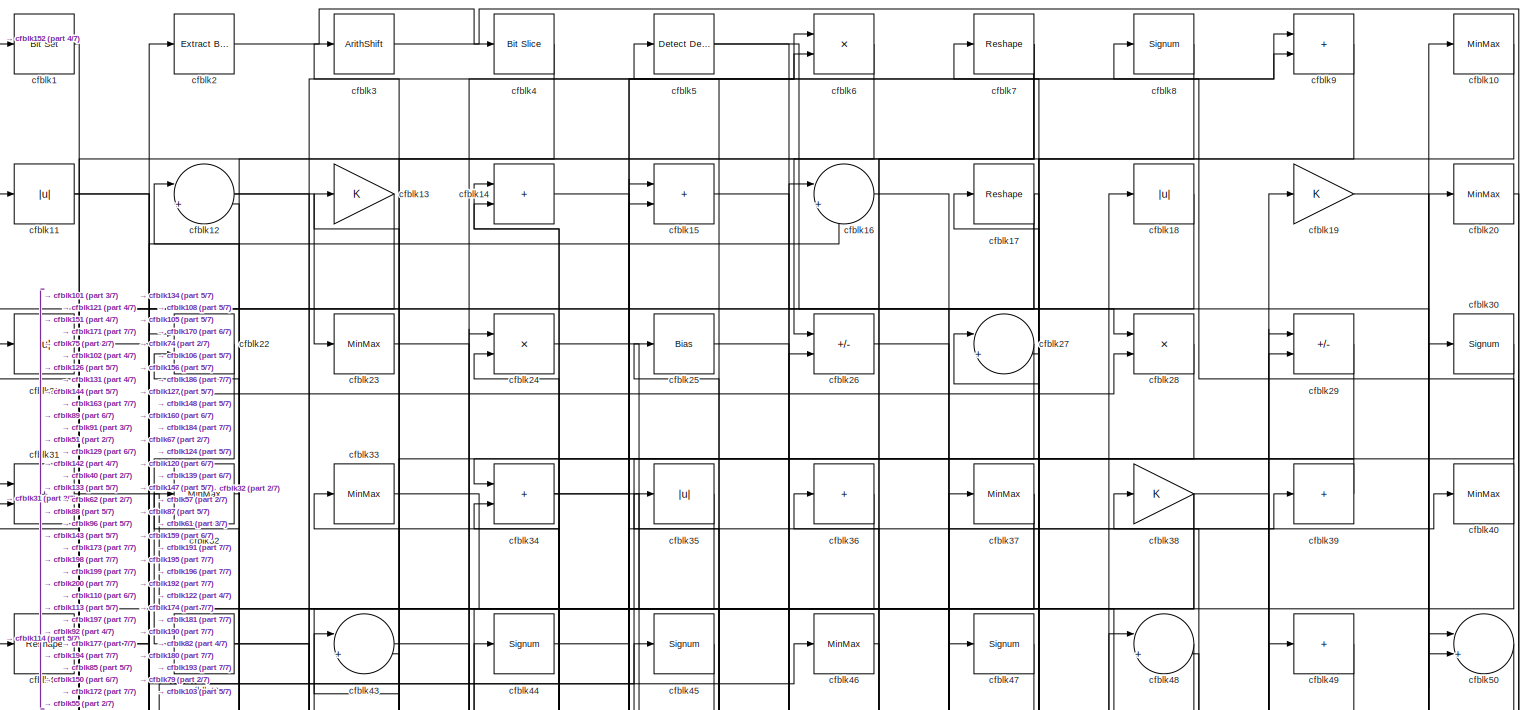
[diagram: root canvas - part 1/7, full width, top band]
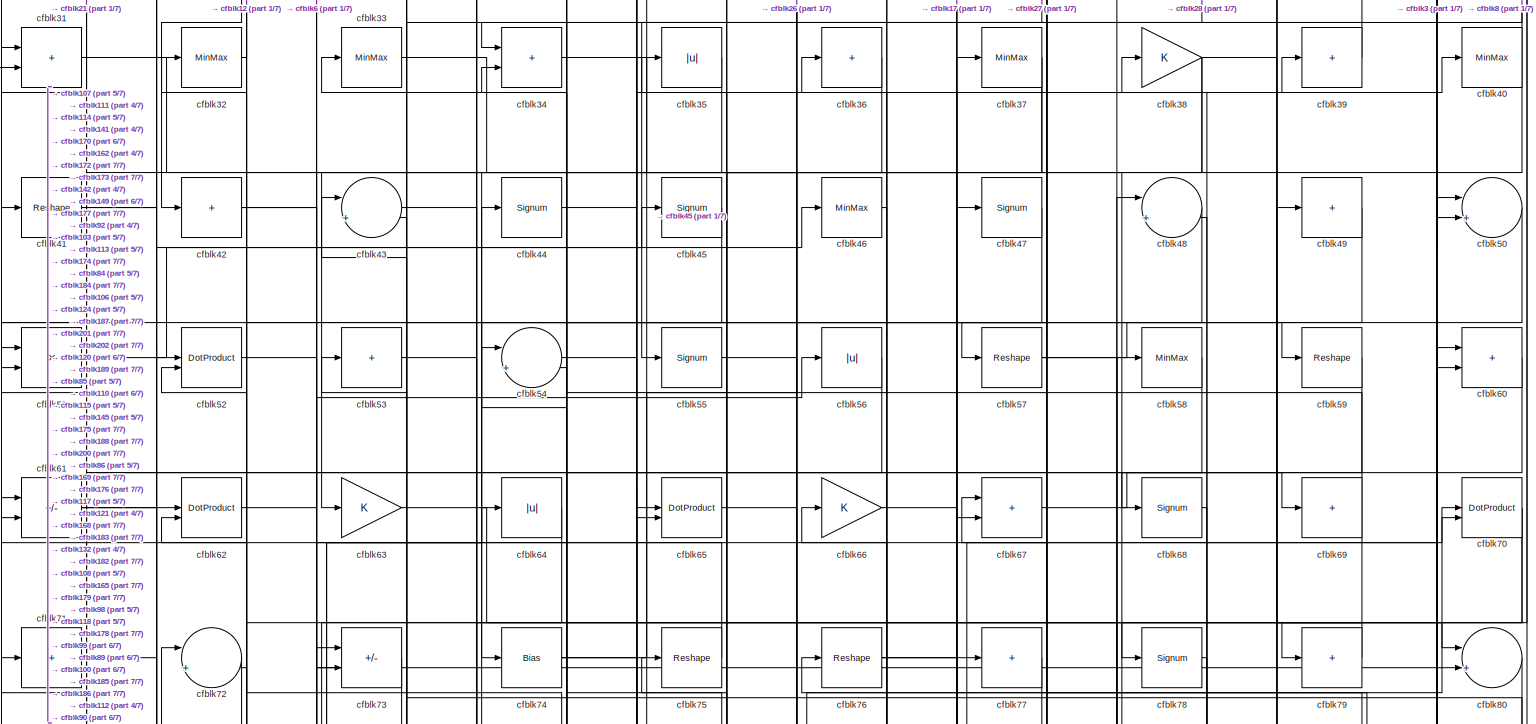
[diagram: root canvas - part 2/7, full width, top band]
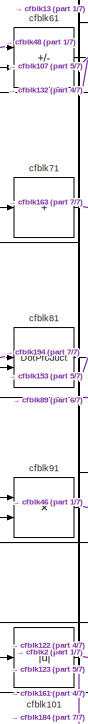
[diagram: root canvas - part 3/7, middle left region]
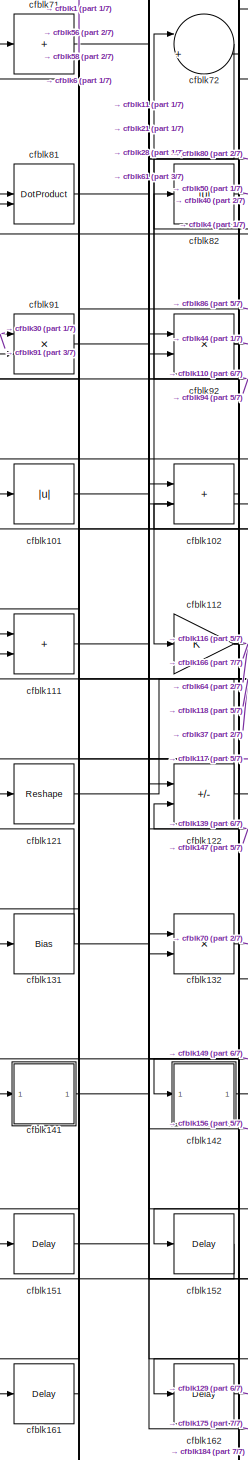
[diagram: root canvas - part 4/7, middle left region]
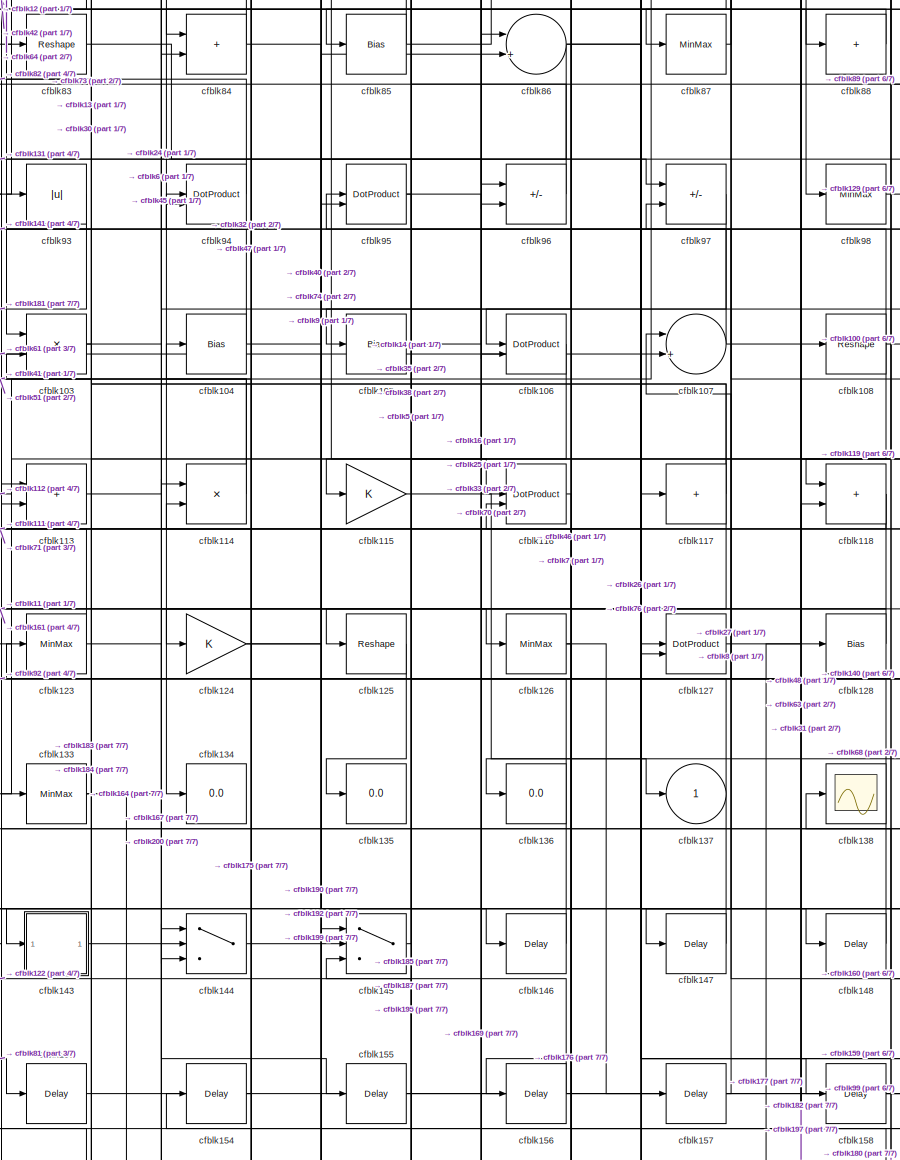
[diagram: root canvas - part 5/7, central region]
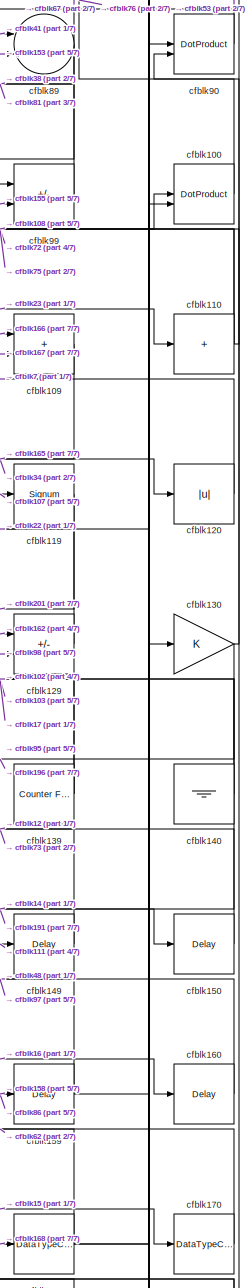
[diagram: root canvas - part 6/7, middle right region]
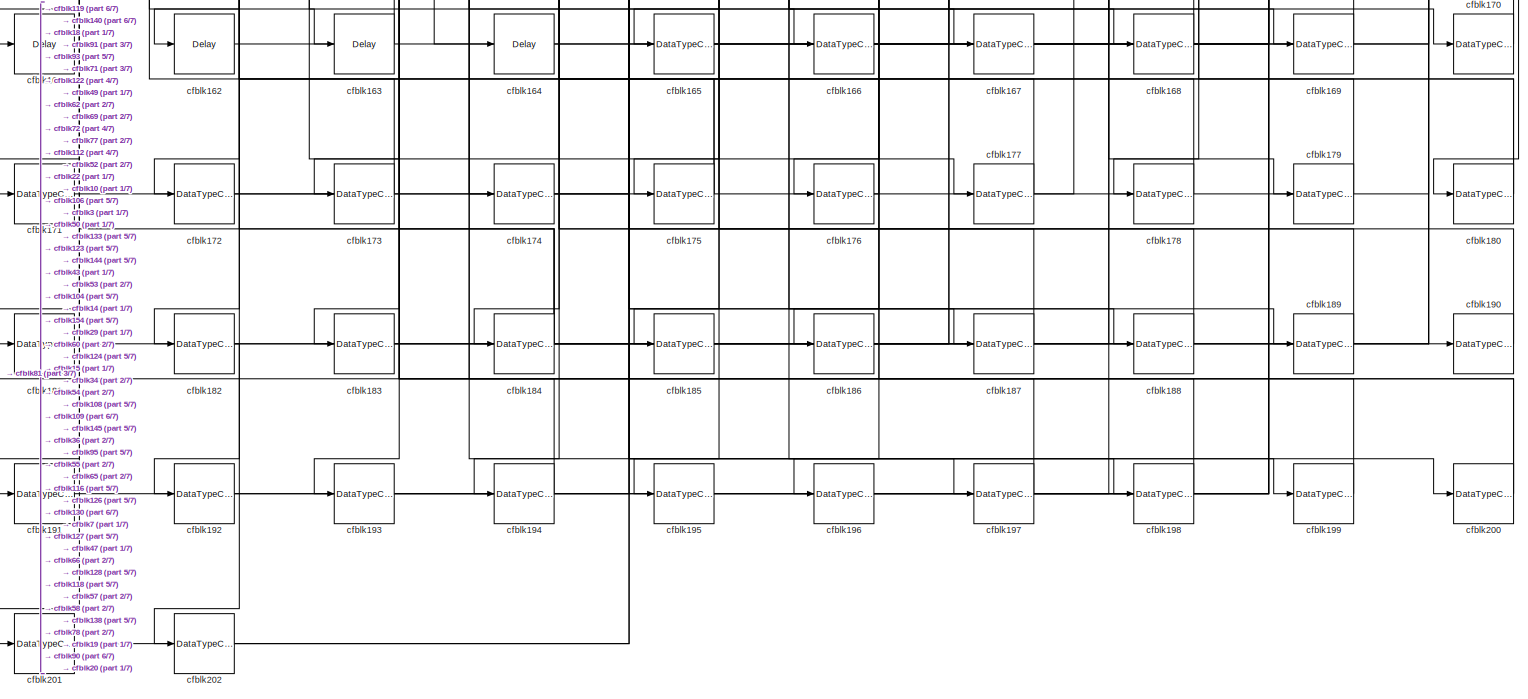
[diagram: root canvas - part 7/7, full width, bottom band]
MODEL slx_866f47cd0418
KIND model
CONFIG AbsTol = auto
CONFIG EnableMultiTasking = off
CONFIG FixedStep = auto
CONFIG MaxStep = auto
CONFIG MinStep = auto
CONFIG RelTol = 1e-3
CONFIG SampleTimeConstraint = Unconstrained
CONFIG SolverName = VariableStepAuto
CONFIG StartTime = 0.0
CONFIG StopTime = 10.0
BLOCK [Reference] cfblk1  REF=simulink/Logic and Bit
Operations/Bit Set
  LibrarySourceBlock = hdlsllib/Logic and Bit\nOperations/Bit Set
  SourceBlock = simulink/Logic and Bit\nOperations/Bit Set
  SourceType = Bit Set
BLOCK [MinMax] cfblk10
BLOCK [DotProduct] cfblk100
  OutDataTypeStr = Inherit: Inherit via internal rule
BLOCK [Abs] cfblk101
  SaturateOnIntegerOverflow = off
BLOCK [Sum] cfblk102
  IconShape = rectangular
BLOCK [Product] cfblk103
  Inputs = */
  RndMeth = Zero
  SaturateOnIntegerOverflow = on
BLOCK [Bias] cfblk104
  Bias = 0.0
  SaturateOnIntegerOverflow = off
BLOCK [Bias] cfblk105
  Bias = 0.0
  SaturateOnIntegerOverflow = off
BLOCK [DotProduct] cfblk106
  OutDataTypeStr = Inherit: Inherit via internal rule
BLOCK [Sum] cfblk107
  Inputs = |++
BLOCK [Reshape] cfblk108
BLOCK [Sum] cfblk109
  IconShape = rectangular
BLOCK [Abs] cfblk11
  SaturateOnIntegerOverflow = off
BLOCK [Sum] cfblk110
  IconShape = rectangular
  Inputs = +
BLOCK [Sum] cfblk111
  IconShape = rectangular
BLOCK [Gain] cfblk112
BLOCK [Sum] cfblk113
  IconShape = rectangular
BLOCK [Product] cfblk114
  Inputs = */
  RndMeth = Zero
  SaturateOnIntegerOverflow = on
BLOCK [Gain] cfblk115
BLOCK [DotProduct] cfblk116
  OutDataTypeStr = Inherit: Inherit via internal rule
BLOCK [Sum] cfblk117
  IconShape = rectangular
  Inputs = +
BLOCK [Sum] cfblk118
  IconShape = rectangular
BLOCK [Signum] cfblk119
BLOCK [Sum] cfblk12
  Inputs = |++
BLOCK [Abs] cfblk120
  SaturateOnIntegerOverflow = off
BLOCK [Reshape] cfblk121
BLOCK [Sum] cfblk122
  IconShape = rectangular
  Inputs = +-
BLOCK [MinMax] cfblk123
BLOCK [Gain] cfblk124
BLOCK [Reshape] cfblk125
BLOCK [MinMax] cfblk126
BLOCK [DotProduct] cfblk127
  OutDataTypeStr = Inherit: Inherit via internal rule
BLOCK [Bias] cfblk128
  Bias = 0.0
  SaturateOnIntegerOverflow = off
BLOCK [Sum] cfblk129
  IconShape = rectangular
  Inputs = +-
BLOCK [Gain] cfblk13
BLOCK [Gain] cfblk130
BLOCK [Bias] cfblk131
  Bias = 0.0
  SaturateOnIntegerOverflow = off
BLOCK [Product] cfblk132
  Inputs = */
  RndMeth = Zero
  SaturateOnIntegerOverflow = on
BLOCK [MinMax] cfblk133
BLOCK [Display] cfblk134
  Decimation = 1
BLOCK [Display] cfblk135
  Decimation = 1
BLOCK [Display] cfblk136
  Decimation = 1
BLOCK [Outport] cfblk137
  VectorParamsAs1DForOutWhenUnconnected = off
BLOCK [Scope] cfblk138
  Floating = off
  NumInputPorts = 1
  ScopeSpecificationString = Simulink.scopes.TimeScopeBlockCfg('CurrentConfiguration', extmgr.ConfigurationSet(extmgr.Configuration('Core','General UI',true),extmgr.Configuration('Core','Source UI',true),extmgr.Configuration('Sources','WiredSimulink',true,'DataLoggingVariableName','ScopeData2','DataLoggingSaveFormat','Array','DataLoggingLimitDataPoints',true,'DataLoggingDecimation','1'),extmgr.Configuration('Visuals','Time Do...<+868ch>
BLOCK [Reference] cfblk139  REF=hdlsllib/Sources/Counter
Free-Running
  SourceBlock = hdlsllib/Sources/Counter\nFree-Running
  SourceType = Counter Free-Running
BLOCK [Sum] cfblk14
  IconShape = rectangular
BLOCK [Ground] cfblk140
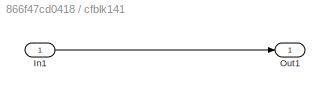
BLOCK [SubSystem] cfblk141
  LibrarySourceBlock = hdlsllib/Ports &\nSubsystems/Subsystem
BLOCK [Inport] cfblk141/In1
BLOCK [Outport] cfblk141/Out1
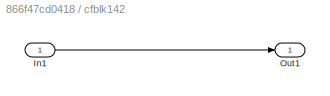
BLOCK [SubSystem] cfblk142
  LibrarySourceBlock = hdlsllib/Ports &\nSubsystems/Subsystem
BLOCK [Inport] cfblk142/In1
BLOCK [Outport] cfblk142/Out1
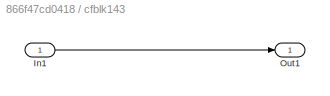
BLOCK [SubSystem] cfblk143
  LibrarySourceBlock = hdlsllib/Ports &\nSubsystems/Subsystem
BLOCK [Inport] cfblk143/In1
BLOCK [Outport] cfblk143/Out1
BLOCK [Switch] cfblk144
  InputSameDT = off
  SaturateOnIntegerOverflow = off
BLOCK [Switch] cfblk145
  InputSameDT = off
  SaturateOnIntegerOverflow = off
BLOCK [Delay] cfblk146
  InputPortMap = u0
  SampleTime = 1
BLOCK [Delay] cfblk147
  InputPortMap = u0
  SampleTime = 1
BLOCK [Delay] cfblk148
  InputPortMap = u0
  SampleTime = 1
BLOCK [Delay] cfblk149
  InputPortMap = u0
  SampleTime = 1
BLOCK [Sum] cfblk15
  IconShape = rectangular
BLOCK [Delay] cfblk150
  InputPortMap = u0
  SampleTime = 1
BLOCK [Delay] cfblk151
  InputPortMap = u0
  SampleTime = 1
BLOCK [Delay] cfblk152
  InputPortMap = u0
  SampleTime = 1
BLOCK [Delay] cfblk153
  InputPortMap = u0
  SampleTime = 1
BLOCK [Delay] cfblk154
  InputPortMap = u0
  SampleTime = 1
BLOCK [Delay] cfblk155
  InputPortMap = u0
  SampleTime = 1
BLOCK [Delay] cfblk156
  InputPortMap = u0
  SampleTime = 1
BLOCK [Delay] cfblk157
  InputPortMap = u0
  SampleTime = 1
BLOCK [Delay] cfblk158
  InputPortMap = u0
  SampleTime = 1
BLOCK [Delay] cfblk159
  InputPortMap = u0
  SampleTime = 1
BLOCK [Sum] cfblk16
  Inputs = |++
BLOCK [Delay] cfblk160
  InputPortMap = u0
  SampleTime = 1
BLOCK [Delay] cfblk161
  InputPortMap = u0
  SampleTime = 1
BLOCK [Delay] cfblk162
  InputPortMap = u0
  SampleTime = 1
BLOCK [Delay] cfblk163
  InputPortMap = u0
  SampleTime = 1
BLOCK [Delay] cfblk164
  InputPortMap = u0
  SampleTime = 1
BLOCK [DataTypeConversion] cfblk165
  RndMeth = Floor
  SaturateOnIntegerOverflow = off
BLOCK [DataTypeConversion] cfblk166
  OutDataTypeStr = uint8
  RndMeth = Floor
  SaturateOnIntegerOverflow = off
BLOCK [DataTypeConversion] cfblk167
  OutDataTypeStr = uint8
  RndMeth = Floor
  SaturateOnIntegerOverflow = off
BLOCK [DataTypeConversion] cfblk168
  RndMeth = Floor
  SaturateOnIntegerOverflow = off
BLOCK [DataTypeConversion] cfblk169
  OutDataTypeStr = uint8
  RndMeth = Floor
  SaturateOnIntegerOverflow = off
BLOCK [Reshape] cfblk17
BLOCK [DataTypeConversion] cfblk170
  OutDataTypeStr = uint8
  RndMeth = Floor
  SaturateOnIntegerOverflow = off
BLOCK [DataTypeConversion] cfblk171
  OutDataTypeStr = uint8
  RndMeth = Floor
  SaturateOnIntegerOverflow = off
BLOCK [DataTypeConversion] cfblk172
  OutDataTypeStr = uint8
  RndMeth = Floor
  SaturateOnIntegerOverflow = off
BLOCK [DataTypeConversion] cfblk173
  OutDataTypeStr = uint8
  RndMeth = Floor
  SaturateOnIntegerOverflow = off
BLOCK [DataTypeConversion] cfblk174
  OutDataTypeStr = uint8
  RndMeth = Floor
  SaturateOnIntegerOverflow = off
BLOCK [DataTypeConversion] cfblk175
  RndMeth = Floor
  SaturateOnIntegerOverflow = off
BLOCK [DataTypeConversion] cfblk176
  OutDataTypeStr = uint8
  RndMeth = Floor
  SaturateOnIntegerOverflow = off
BLOCK [DataTypeConversion] cfblk177
  RndMeth = Floor
  SaturateOnIntegerOverflow = off
BLOCK [DataTypeConversion] cfblk178
  OutDataTypeStr = uint8
  RndMeth = Floor
  SaturateOnIntegerOverflow = off
BLOCK [DataTypeConversion] cfblk179
  OutDataTypeStr = uint8
  RndMeth = Floor
  SaturateOnIntegerOverflow = off
BLOCK [Abs] cfblk18
  SaturateOnIntegerOverflow = off
BLOCK [DataTypeConversion] cfblk180
  RndMeth = Floor
  SaturateOnIntegerOverflow = off
BLOCK [DataTypeConversion] cfblk181
  OutDataTypeStr = uint8
  RndMeth = Floor
  SaturateOnIntegerOverflow = off
BLOCK [DataTypeConversion] cfblk182
  RndMeth = Floor
  SaturateOnIntegerOverflow = off
BLOCK [DataTypeConversion] cfblk183
  OutDataTypeStr = uint8
  RndMeth = Floor
  SaturateOnIntegerOverflow = off
BLOCK [DataTypeConversion] cfblk184
  RndMeth = Floor
  SaturateOnIntegerOverflow = off
BLOCK [DataTypeConversion] cfblk185
  OutDataTypeStr = uint8
  RndMeth = Floor
  SaturateOnIntegerOverflow = off
BLOCK [DataTypeConversion] cfblk186
  OutDataTypeStr = uint8
  RndMeth = Floor
  SaturateOnIntegerOverflow = off
BLOCK [DataTypeConversion] cfblk187
  OutDataTypeStr = uint8
  RndMeth = Floor
  SaturateOnIntegerOverflow = off
BLOCK [DataTypeConversion] cfblk188
  OutDataTypeStr = uint8
  RndMeth = Floor
  SaturateOnIntegerOverflow = off
BLOCK [DataTypeConversion] cfblk189
  OutDataTypeStr = uint8
  RndMeth = Floor
  SaturateOnIntegerOverflow = off
BLOCK [Gain] cfblk19
BLOCK [DataTypeConversion] cfblk190
  OutDataTypeStr = uint8
  RndMeth = Floor
  SaturateOnIntegerOverflow = off
BLOCK [DataTypeConversion] cfblk191
  OutDataTypeStr = uint8
  RndMeth = Floor
  SaturateOnIntegerOverflow = off
BLOCK [DataTypeConversion] cfblk192
  OutDataTypeStr = uint8
  RndMeth = Floor
  SaturateOnIntegerOverflow = off
BLOCK [DataTypeConversion] cfblk193
  OutDataTypeStr = uint8
  RndMeth = Floor
  SaturateOnIntegerOverflow = off
BLOCK [DataTypeConversion] cfblk194
  OutDataTypeStr = uint8
  RndMeth = Floor
  SaturateOnIntegerOverflow = off
BLOCK [DataTypeConversion] cfblk195
  OutDataTypeStr = uint8
  RndMeth = Floor
  SaturateOnIntegerOverflow = off
BLOCK [DataTypeConversion] cfblk196
  OutDataTypeStr = uint8
  RndMeth = Floor
  SaturateOnIntegerOverflow = off
BLOCK [DataTypeConversion] cfblk197
  RndMeth = Floor
  SaturateOnIntegerOverflow = off
BLOCK [DataTypeConversion] cfblk198
  OutDataTypeStr = uint8
  RndMeth = Floor
  SaturateOnIntegerOverflow = off
BLOCK [DataTypeConversion] cfblk199
  OutDataTypeStr = uint8
  RndMeth = Floor
  SaturateOnIntegerOverflow = off
BLOCK [Reference] cfblk2  REF=simulink/Logic and Bit
Operations/Extract Bits
  LibrarySourceBlock = hdlsllib/Logic and Bit\nOperations/Extract Bits
  SourceBlock = simulink/Logic and Bit\nOperations/Extract Bits
  SourceType = Extract Bits
BLOCK [MinMax] cfblk20
BLOCK [DataTypeConversion] cfblk200
  RndMeth = Floor
  SaturateOnIntegerOverflow = off
BLOCK [DataTypeConversion] cfblk201
  OutDataTypeStr = uint8
  RndMeth = Floor
  SaturateOnIntegerOverflow = off
BLOCK [DataTypeConversion] cfblk202
  OutDataTypeStr = uint8
  RndMeth = Floor
  SaturateOnIntegerOverflow = off
BLOCK [Abs] cfblk21
  SaturateOnIntegerOverflow = off
BLOCK [Product] cfblk22
  Inputs = */
  RndMeth = Zero
  SaturateOnIntegerOverflow = on
BLOCK [MinMax] cfblk23
BLOCK [Product] cfblk24
  Inputs = */
  RndMeth = Zero
  SaturateOnIntegerOverflow = on
BLOCK [Bias] cfblk25
  Bias = 0.0
  SaturateOnIntegerOverflow = off
BLOCK [Sum] cfblk26
  IconShape = rectangular
  Inputs = +-
BLOCK [Sum] cfblk27
  Inputs = |++
BLOCK [Product] cfblk28
  Inputs = */
  RndMeth = Zero
  SaturateOnIntegerOverflow = on
BLOCK [Sum] cfblk29
  IconShape = rectangular
  Inputs = +-
BLOCK [ArithShift] cfblk3
  BitShiftNumber = 8
  InputPortMap = u0
BLOCK [Signum] cfblk30
BLOCK [Sum] cfblk31
  IconShape = rectangular
BLOCK [MinMax] cfblk32
BLOCK [MinMax] cfblk33
BLOCK [Sum] cfblk34
  IconShape = rectangular
BLOCK [Abs] cfblk35
  SaturateOnIntegerOverflow = off
BLOCK [Sum] cfblk36
  IconShape = rectangular
  Inputs = +
BLOCK [MinMax] cfblk37
BLOCK [Gain] cfblk38
BLOCK [Sum] cfblk39
  IconShape = rectangular
  Inputs = +
BLOCK [Reference] cfblk4  REF=hdlsllib/Logic and Bit
Operations/Bit Slice
  SourceBlock = hdlsllib/Logic and Bit\nOperations/Bit Slice
  SourceType = Bit Slice
BLOCK [MinMax] cfblk40
BLOCK [Reshape] cfblk41
BLOCK [Sum] cfblk42
  IconShape = rectangular
  Inputs = +
BLOCK [Sum] cfblk43
  Inputs = |++
BLOCK [Signum] cfblk44
BLOCK [Signum] cfblk45
BLOCK [MinMax] cfblk46
BLOCK [Signum] cfblk47
BLOCK [Sum] cfblk48
  Inputs = |++
BLOCK [Sum] cfblk49
  IconShape = rectangular
  Inputs = +
BLOCK [Reference] cfblk5  REF=simulink/Logic and Bit
Operations/Detect
Decrease
  LibrarySourceBlock = hdlsllib/Logic and Bit\nOperations/Detect\nDecrease
  SourceBlock = simulink/Logic and Bit\nOperations/Detect\nDecrease
  SourceType = Detect Decrease
BLOCK [Sum] cfblk50
  Inputs = |++
BLOCK [Product] cfblk51
  Inputs = */
  RndMeth = Zero
  SaturateOnIntegerOverflow = on
BLOCK [DotProduct] cfblk52
  OutDataTypeStr = Inherit: Inherit via internal rule
BLOCK [Sum] cfblk53
  IconShape = rectangular
  Inputs = +
BLOCK [Sum] cfblk54
  Inputs = |++
BLOCK [Signum] cfblk55
BLOCK [Abs] cfblk56
  SaturateOnIntegerOverflow = off
BLOCK [Reshape] cfblk57
BLOCK [MinMax] cfblk58
BLOCK [Reshape] cfblk59
BLOCK [Product] cfblk6
  Inputs = */
  RndMeth = Zero
  SaturateOnIntegerOverflow = on
BLOCK [Sum] cfblk60
  IconShape = rectangular
BLOCK [Sum] cfblk61
  IconShape = rectangular
  Inputs = +-
BLOCK [DotProduct] cfblk62
  OutDataTypeStr = Inherit: Inherit via internal rule
BLOCK [Gain] cfblk63
BLOCK [Abs] cfblk64
  SaturateOnIntegerOverflow = off
BLOCK [DotProduct] cfblk65
  OutDataTypeStr = Inherit: Inherit via internal rule
BLOCK [Gain] cfblk66
BLOCK [Sum] cfblk67
  IconShape = rectangular
BLOCK [Signum] cfblk68
BLOCK [Sum] cfblk69
  IconShape = rectangular
  Inputs = +
BLOCK [Reshape] cfblk7
BLOCK [DotProduct] cfblk70
  OutDataTypeStr = Inherit: Inherit via internal rule
BLOCK [Sum] cfblk71
  IconShape = rectangular
  Inputs = +
BLOCK [Sum] cfblk72
  Inputs = |++
BLOCK [Sum] cfblk73
  IconShape = rectangular
  Inputs = +-
BLOCK [Bias] cfblk74
  Bias = 0.0
  SaturateOnIntegerOverflow = off
BLOCK [Reshape] cfblk75
BLOCK [Reshape] cfblk76
BLOCK [Sum] cfblk77
  IconShape = rectangular
  Inputs = +
BLOCK [Signum] cfblk78
BLOCK [Sum] cfblk79
  IconShape = rectangular
  Inputs = +
BLOCK [Signum] cfblk8
BLOCK [Sum] cfblk80
  Inputs = |++
BLOCK [DotProduct] cfblk81
  OutDataTypeStr = Inherit: Inherit via internal rule
BLOCK [Abs] cfblk82
  SaturateOnIntegerOverflow = off
BLOCK [Reshape] cfblk83
BLOCK [Sum] cfblk84
  IconShape = rectangular
BLOCK [Bias] cfblk85
  Bias = 0.0
  SaturateOnIntegerOverflow = off
BLOCK [Sum] cfblk86
  Inputs = |++
BLOCK [MinMax] cfblk87
BLOCK [Sum] cfblk88
  IconShape = rectangular
  Inputs = +
BLOCK [Sum] cfblk89
  Inputs = |++
BLOCK [Sum] cfblk9
  IconShape = rectangular
BLOCK [DotProduct] cfblk90
  OutDataTypeStr = Inherit: Inherit via internal rule
BLOCK [Product] cfblk91
  Inputs = */
  RndMeth = Zero
  SaturateOnIntegerOverflow = on
BLOCK [Product] cfblk92
  Inputs = */
  RndMeth = Zero
  SaturateOnIntegerOverflow = on
BLOCK [Abs] cfblk93
  SaturateOnIntegerOverflow = off
BLOCK [DotProduct] cfblk94
  OutDataTypeStr = Inherit: Inherit via internal rule
BLOCK [DotProduct] cfblk95
  OutDataTypeStr = Inherit: Inherit via internal rule
BLOCK [Sum] cfblk96
  IconShape = rectangular
  Inputs = +-
BLOCK [Sum] cfblk97
  IconShape = rectangular
  Inputs = +-
BLOCK [MinMax] cfblk98
BLOCK [Sum] cfblk99
  IconShape = rectangular
  Inputs = +-
LINE cfblk100:1 -> cfblk76:1
LINE cfblk101:1 -> cfblk2:1
LINE cfblk102:1 -> cfblk152:1
NET cfblk103:1 -> cfblk13:1, cfblk6:2
NET cfblk104:1 -> cfblk86:2, cfblk94:2
LINE cfblk105:1 -> cfblk16:1
LINE cfblk106:1 -> cfblk183:1
NET cfblk107:1 -> cfblk119:1, cfblk31:1
NET cfblk108:1 -> cfblk100:1, cfblk185:1, cfblk25:1
LINE cfblk109:1 -> cfblk165:1
LINE cfblk10:1 -> cfblk173:1
NET cfblk110:1 -> cfblk72:1, cfblk75:1, cfblk90:2
LINE cfblk111:1 -> cfblk149:1
NET cfblk112:1 -> cfblk116:1, cfblk166:1, cfblk64:1
LINE cfblk113:1 -> cfblk24:1
NET cfblk114:1 -> cfblk41:1, cfblk51:2
LINE cfblk115:1 -> cfblk137:1
LINE cfblk116:1 -> cfblk136:1
NET cfblk117:1 -> cfblk161:1, cfblk83:1, cfblk93:1
NET cfblk118:1 -> cfblk111:2, cfblk144:2
LINE cfblk119:1 -> cfblk201:1
NET cfblk11:1 -> cfblk126:1, cfblk144:3
LINE cfblk120:1 -> cfblk7:1
LINE cfblk121:1 -> cfblk37:1
NET cfblk122:1 -> cfblk30:1, cfblk91:1
NET cfblk123:1 -> cfblk167:1, cfblk71:1
NET cfblk124:1 -> cfblk199:1, cfblk40:1
LINE cfblk125:1 -> cfblk135:1
NET cfblk126:1 -> cfblk157:1, cfblk176:1
LINE cfblk127:1 -> cfblk48:1
LINE cfblk128:1 -> cfblk125:1
LINE cfblk129:1 -> cfblk22:2
NET cfblk12:1 -> cfblk23:1, cfblk96:2
NET cfblk130:1 -> cfblk196:1, cfblk99:1
NET cfblk131:1 -> cfblk11:1, cfblk28:2
LINE cfblk132:1 -> cfblk70:1
NET cfblk133:1 -> cfblk114:1, cfblk164:1
NET cfblk139:1 -> cfblk102:2, cfblk17:1
LINE cfblk13:1 -> cfblk101:1
NET cfblk140:1 -> cfblk103:2, cfblk191:1, cfblk95:1
LINE cfblk141/In1:1 -> cfblk141/Out1:1
LINE cfblk141:1 -> cfblk94:1
LINE cfblk142/In1:1 -> cfblk142/Out1:1
LINE cfblk142:1 -> cfblk56:1
LINE cfblk143/In1:1 -> cfblk143/Out1:1
LINE cfblk143:1 -> cfblk155:1
LINE cfblk144:1 -> cfblk9:1
LINE cfblk145:1 -> cfblk35:1
LINE cfblk146:1 -> cfblk113:1
LINE cfblk147:1 -> cfblk92:1
LINE cfblk148:1 -> cfblk24:2
LINE cfblk149:1 -> cfblk73:1
LINE cfblk14:1 -> cfblk150:1
LINE cfblk150:1 -> cfblk12:1
LINE cfblk151:1 -> cfblk132:2
LINE cfblk152:1 -> cfblk1:1
LINE cfblk153:1 -> cfblk89:2
LINE cfblk154:1 -> cfblk114:2
LINE cfblk155:1 -> cfblk99:2
LINE cfblk156:1 -> cfblk122:1
LINE cfblk157:1 -> cfblk107:1
LINE cfblk158:1 -> cfblk100:2
LINE cfblk159:1 -> cfblk48:2
LINE cfblk15:1 -> cfblk170:1
LINE cfblk160:1 -> cfblk97:2
LINE cfblk161:1 -> cfblk61:2
LINE cfblk162:1 -> cfblk129:1
LINE cfblk163:1 -> cfblk22:1
LINE cfblk164:1 -> cfblk127:2
NET cfblk165:1 -> cfblk58:1, cfblk90:1
LINE cfblk166:1 -> cfblk109:1
LINE cfblk167:1 -> cfblk109:2
NET cfblk168:1 -> cfblk130:1, cfblk34:2
LINE cfblk169:1 -> cfblk66:1
LINE cfblk16:1 -> cfblk160:1
LINE cfblk170:1 -> cfblk62:1
LINE cfblk171:1 -> cfblk15:1
LINE cfblk172:1 -> cfblk15:2
LINE cfblk173:1 -> cfblk62:2
LINE cfblk174:1 -> cfblk10:1
NET cfblk175:1 -> cfblk122:2, cfblk154:1
LINE cfblk176:1 -> cfblk36:1
NET cfblk177:1 -> cfblk128:1, cfblk14:2
LINE cfblk178:1 -> cfblk52:1
LINE cfblk179:1 -> cfblk52:2
NET cfblk17:1 -> cfblk27:2, cfblk31:2, cfblk67:2
NET cfblk180:1 -> cfblk104:1, cfblk138:1
LINE cfblk181:1 -> cfblk20:1
NET cfblk182:1 -> cfblk118:2, cfblk202:1
LINE cfblk183:1 -> cfblk77:1
NET cfblk184:1 -> cfblk123:1, cfblk198:1, cfblk47:1, cfblk72:2, cfblk91:2
LINE cfblk185:1 -> cfblk60:1
LINE cfblk186:1 -> cfblk60:2
LINE cfblk187:1 -> cfblk145:3
LINE cfblk188:1 -> cfblk54:1
LINE cfblk189:1 -> cfblk54:2
LINE cfblk18:1 -> cfblk171:1
LINE cfblk190:1 -> cfblk145:1
LINE cfblk191:1 -> cfblk19:1
LINE cfblk192:1 -> cfblk145:2
LINE cfblk193:1 -> cfblk49:1
LINE cfblk194:1 -> cfblk81:1
LINE cfblk195:1 -> cfblk29:1
LINE cfblk196:1 -> cfblk29:2
NET cfblk197:1 -> cfblk116:2, cfblk18:1
LINE cfblk198:1 -> cfblk43:1
LINE cfblk199:1 -> cfblk43:2
LINE cfblk19:1 -> cfblk190:1
LINE cfblk1:1 -> cfblk121:1
NET cfblk200:1 -> cfblk144:1, cfblk3:1
LINE cfblk201:1 -> cfblk65:1
LINE cfblk202:1 -> cfblk65:2
LINE cfblk20:1 -> cfblk180:1
LINE cfblk21:1 -> cfblk102:1
LINE cfblk22:1 -> cfblk42:1
LINE cfblk23:1 -> cfblk110:1
LINE cfblk24:1 -> cfblk127:1
LINE cfblk25:1 -> cfblk96:1
LINE cfblk26:1 -> cfblk148:1
LINE cfblk27:1 -> cfblk55:1
LINE cfblk28:1 -> cfblk57:1
LINE cfblk29:1 -> cfblk194:1
LINE cfblk2:1 -> cfblk4:1
LINE cfblk30:1 -> cfblk143:1
LINE cfblk31:1 -> cfblk98:1
LINE cfblk32:1 -> cfblk12:2
LINE cfblk33:1 -> cfblk86:1
NET cfblk34:1 -> cfblk120:1, cfblk189:1
LINE cfblk35:1 -> cfblk74:1
LINE cfblk36:1 -> cfblk175:1
NET cfblk37:1 -> cfblk51:1, cfblk73:2
NET cfblk38:1 -> cfblk115:1, cfblk63:1, cfblk80:1
LINE cfblk39:1 -> cfblk34:1
LINE cfblk3:1 -> cfblk79:1
NET cfblk40:1 -> cfblk162:1, cfblk8:1
NET cfblk41:1 -> cfblk16:2, cfblk89:1
NET cfblk42:1 -> cfblk133:1, cfblk88:1
LINE cfblk43:1 -> cfblk197:1
LINE cfblk44:1 -> cfblk9:2
LINE cfblk45:1 -> cfblk134:1
LINE cfblk46:1 -> cfblk156:1
LINE cfblk47:1 -> cfblk124:1
LINE cfblk48:1 -> cfblk61:1
LINE cfblk49:1 -> cfblk192:1
LINE cfblk4:1 -> cfblk142:1
LINE cfblk50:1 -> cfblk193:1
LINE cfblk51:1 -> cfblk45:1
LINE cfblk52:1 -> cfblk177:1
LINE cfblk53:1 -> cfblk174:1
LINE cfblk54:1 -> cfblk187:1
LINE cfblk55:1 -> cfblk188:1
LINE cfblk56:1 -> cfblk111:1
NET cfblk57:1 -> cfblk179:1, cfblk59:1
LINE cfblk58:1 -> cfblk141:1
LINE cfblk59:1 -> cfblk68:1
NET cfblk5:1 -> cfblk28:1, cfblk50:2
LINE cfblk60:1 -> cfblk184:1
NET cfblk61:1 -> cfblk107:2, cfblk132:1
LINE cfblk62:1 -> cfblk6:1
LINE cfblk63:1 -> cfblk108:1
LINE cfblk64:1 -> cfblk103:1
LINE cfblk65:1 -> cfblk200:1
LINE cfblk66:1 -> cfblk168:1
LINE cfblk67:1 -> cfblk69:1
LINE cfblk68:1 -> cfblk118:1
NET cfblk69:1 -> cfblk172:1, cfblk33:1
LINE cfblk6:1 -> cfblk151:1
NET cfblk70:1 -> cfblk84:1, cfblk84:2
LINE cfblk71:1 -> cfblk163:1
LINE cfblk72:1 -> cfblk92:2
LINE cfblk73:1 -> cfblk113:2
NET cfblk74:1 -> cfblk106:2, cfblk26:2
LINE cfblk75:1 -> cfblk21:1
NET cfblk76:1 -> cfblk117:1, cfblk39:1
LINE cfblk77:1 -> cfblk182:1
LINE cfblk78:1 -> cfblk178:1
LINE cfblk79:1 -> cfblk78:1
NET cfblk7:1 -> cfblk106:1, cfblk186:1, cfblk26:1
LINE cfblk80:1 -> cfblk112:1
LINE cfblk81:1 -> cfblk153:1
LINE cfblk82:1 -> cfblk50:1
LINE cfblk83:1 -> cfblk97:1
NET cfblk84:1 -> cfblk146:1, cfblk32:1
NET cfblk85:1 -> cfblk14:1, cfblk70:2
NET cfblk86:1 -> cfblk131:1, cfblk158:1, cfblk159:1
LINE cfblk87:1 -> cfblk27:1
LINE cfblk88:1 -> cfblk85:1
NET cfblk89:1 -> cfblk67:1, cfblk81:2, cfblk95:2
LINE cfblk8:1 -> cfblk87:1
LINE cfblk90:1 -> cfblk53:1
LINE cfblk91:1 -> cfblk46:1
NET cfblk92:1 -> cfblk44:1, cfblk80:2
LINE cfblk93:1 -> cfblk181:1
LINE cfblk94:1 -> cfblk82:1
NET cfblk95:1 -> cfblk169:1, cfblk195:1
LINE cfblk96:1 -> cfblk5:1
LINE cfblk97:1 -> cfblk105:1
LINE cfblk98:1 -> cfblk129:2
LINE cfblk99:1 -> cfblk38:1
LINE cfblk9:1 -> cfblk147:1
note: NET lines group one-source signal fan-out (src -> all destinations, sorted); 1:1 wires keep LINE
